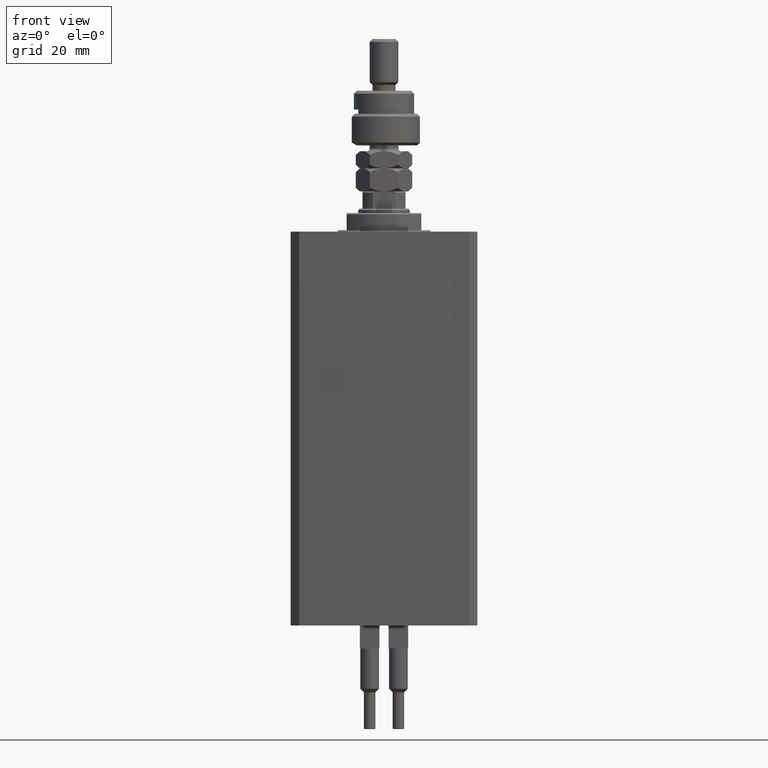
[diagram: clean part render]
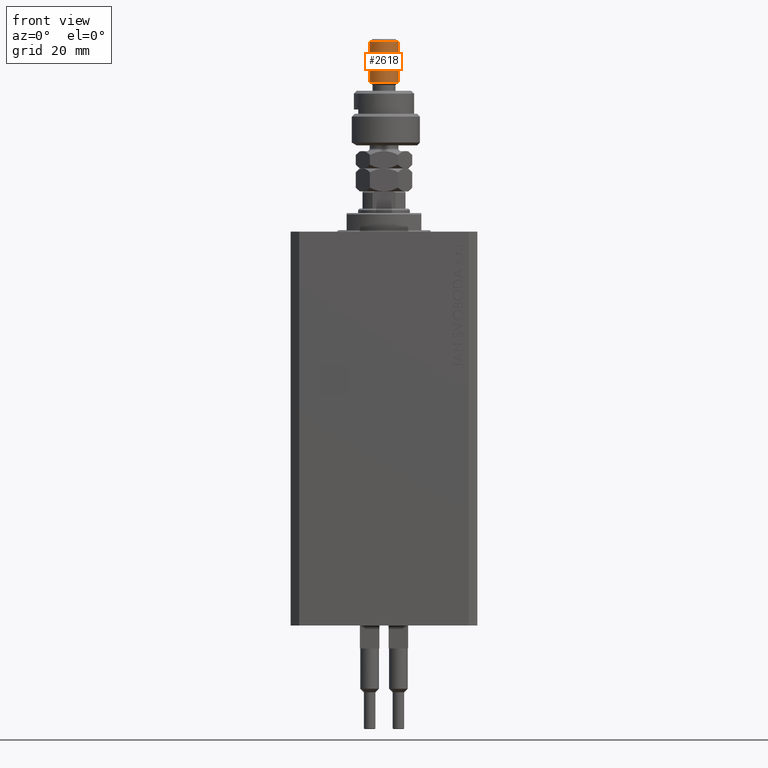
[diagram: same view with one face highlighted and labeled with its STEP entity id]
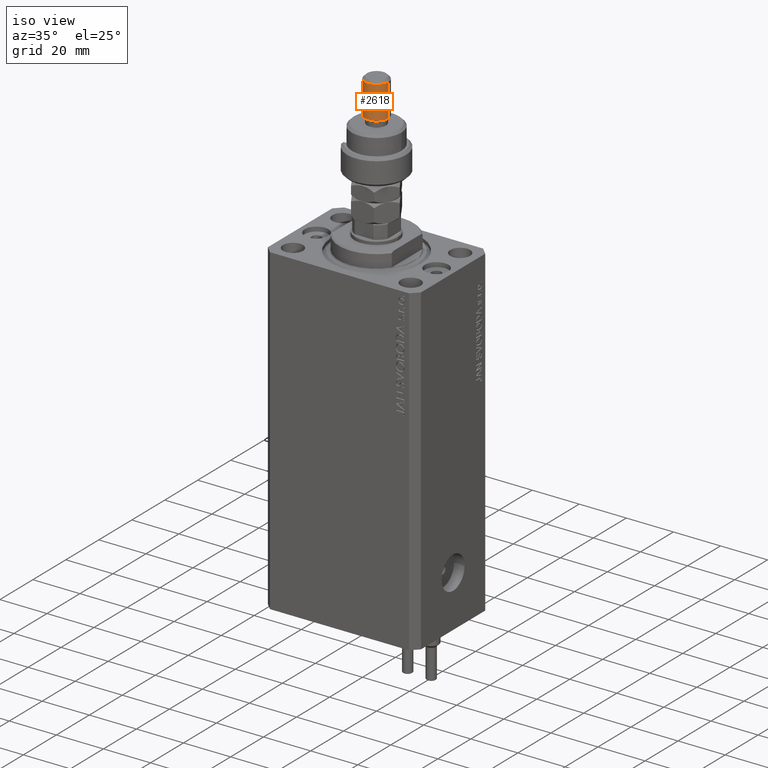
[diagram: same view with one face highlighted and labeled with its STEP entity id]
A machine part, front view. The second image highlights one B-rep face of the part: STEP entity #2618.
A second angle (iso view) of the same face is appended — the face is thin or edge-on in the first view.
In plain terms, the highlighted cylindrical surface (edge-blend (fillet) strip) has radius 5 mm, axis along (-0, -0, -1).
Its self-contained STEP definition (entity closure, byte-faithful):
#397 = DIRECTION ( 'NONE',  ( -0.000000000000000000, -0.000000000000000000, 1.000000000000000000 ) ) ;
#661 = ORIENTED_EDGE ( 'NONE', *, *, #44426, .F. ) ;
#889 = DIRECTION ( 'NONE',  ( -0.000000000000000000, -0.000000000000000000, -1.000000000000000000 ) ) ;
#1179 = ORIENTED_EDGE ( 'NONE', *, *, #16396, .T. ) ;
#2618 = ADVANCED_FACE ( 'NONE', ( #23287 ), #42316, .T. ) ;
#3753 = DIRECTION ( 'NONE',  ( -0.000000000000000000, -0.000000000000000000, -1.000000000000000000 ) ) ;
#9156 = CARTESIAN_POINT ( 'NONE',  ( 5.000000000000000888, 6.123233995736767268E-16, 37.00000000000000000 ) ) ;
#9497 = DIRECTION ( 'NONE',  ( 1.000000000000000000, 0.000000000000000000, 0.000000000000000000 ) ) ;
#11456 = CARTESIAN_POINT ( 'NONE',  ( 0.000000000000000000, 0.000000000000000000, 21.99999999999999289 ) ) ;
#11965 = VECTOR ( 'NONE', #889, 1000.000000000000000 ) ;
#12712 = LINE ( 'NONE', #28382, #11965 ) ;
#16396 = EDGE_CURVE ( 'NONE', #21624, #26137, #12712, .T. ) ;
#16918 = VECTOR ( 'NONE', #24819, 1000.000000000000000 ) ;
#19431 = DIRECTION ( 'NONE',  ( -1.000000000000000000, 0.000000000000000000, 0.000000000000000000 ) ) ;
#21624 = VERTEX_POINT ( 'NONE', #38676 ) ;
#23287 = FACE_OUTER_BOUND ( 'NONE', #27314, .T. ) ;
#23313 = EDGE_CURVE ( 'NONE', #26137, #31500, #40077, .T. ) ;
#24819 = DIRECTION ( 'NONE',  ( -0.000000000000000000, -0.000000000000000000, -1.000000000000000000 ) ) ;
#26029 = AXIS2_PLACEMENT_3D ( 'NONE', #46434, #3753, #19431 ) ;
#26112 = AXIS2_PLACEMENT_3D ( 'NONE', #11456, #397, #47695 ) ;
#26137 = VERTEX_POINT ( 'NONE', #30539 ) ;
#27314 = EDGE_LOOP ( 'NONE', ( #661, #46616, #1179, #50347 ) ) ;
#28382 = CARTESIAN_POINT ( 'NONE',  ( -5.000000000000000888, 0.000000000000000000, 37.00000000000000000 ) ) ;
#28677 = LINE ( 'NONE', #9156, #16918 ) ;
#30539 = CARTESIAN_POINT ( 'NONE',  ( -5.000000000000000888, 0.000000000000000000, 21.99999999999999289 ) ) ;
#30639 = CIRCLE ( 'NONE', #37225, 5.000000000000000888 ) ;
#31500 = VERTEX_POINT ( 'NONE', #36167 ) ;
#36167 = CARTESIAN_POINT ( 'NONE',  ( 5.000000000000000888, 6.123233995736767268E-16, 21.99999999999999289 ) ) ;
#37225 = AXIS2_PLACEMENT_3D ( 'NONE', #49990, #46141, #9497 ) ;
#38676 = CARTESIAN_POINT ( 'NONE',  ( -5.000000000000000888, 0.000000000000000000, 36.00000000000000711 ) ) ;
#39163 = EDGE_CURVE ( 'NONE', #48157, #21624, #30639, .T. ) ;
#40077 = CIRCLE ( 'NONE', #26112, 5.000000000000000888 ) ;
#42316 = CYLINDRICAL_SURFACE ( 'NONE', #26029, 5.000000000000000888 ) ;
#44426 = EDGE_CURVE ( 'NONE', #48157, #31500, #28677, .T. ) ;
#45067 = CARTESIAN_POINT ( 'NONE',  ( 5.000000000000000888, 6.123233995736767268E-16, 36.00000000000000711 ) ) ;
#46141 = DIRECTION ( 'NONE',  ( 0.000000000000000000, 0.000000000000000000, -1.000000000000000000 ) ) ;
#46434 = CARTESIAN_POINT ( 'NONE',  ( 0.000000000000000000, 0.000000000000000000, 37.00000000000000000 ) ) ;
#46616 = ORIENTED_EDGE ( 'NONE', *, *, #39163, .T. ) ;
#47695 = DIRECTION ( 'NONE',  ( 1.000000000000000000, 0.000000000000000000, 0.000000000000000000 ) ) ;
#48157 = VERTEX_POINT ( 'NONE', #45067 ) ;
#49990 = CARTESIAN_POINT ( 'NONE',  ( 0.000000000000000000, 0.000000000000000000, 36.00000000000000711 ) ) ;
#50347 = ORIENTED_EDGE ( 'NONE', *, *, #23313, .T. ) ;